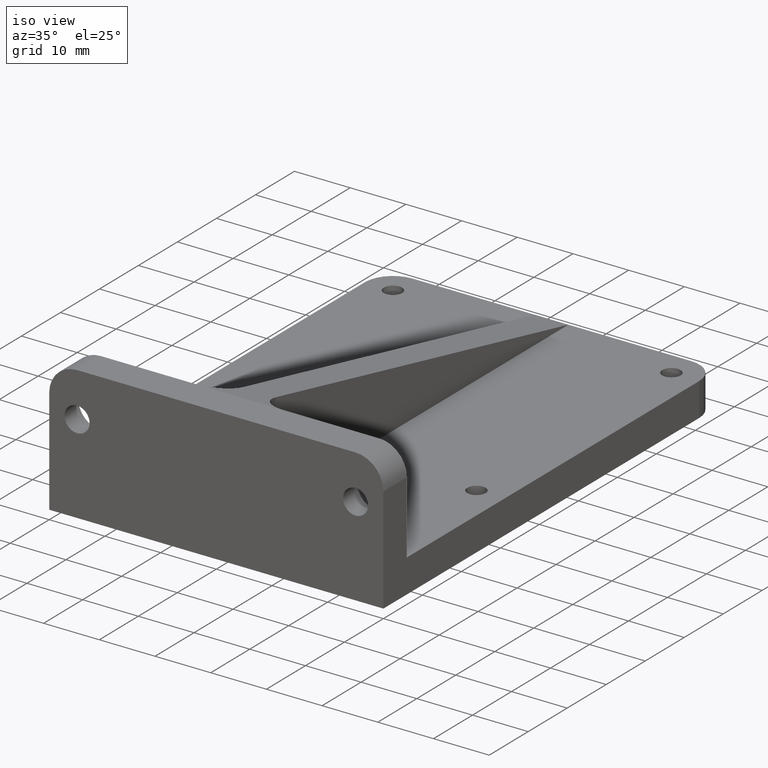
[diagram: clean part render]
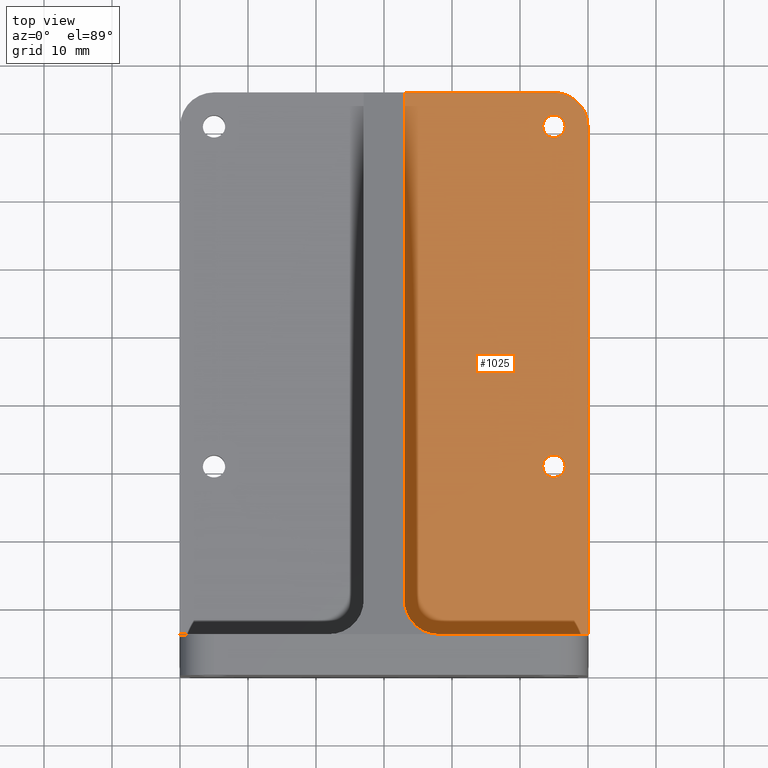
[diagram: tour spotlight — one face highlighted and labeled with its STEP entity id]
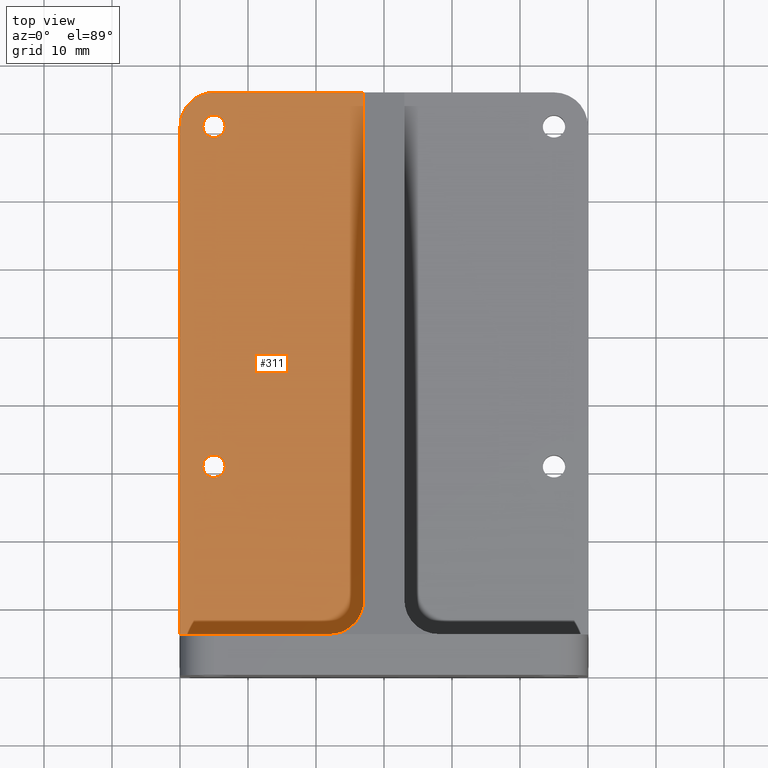
[diagram: tour spotlight — one face highlighted and labeled with its STEP entity id]
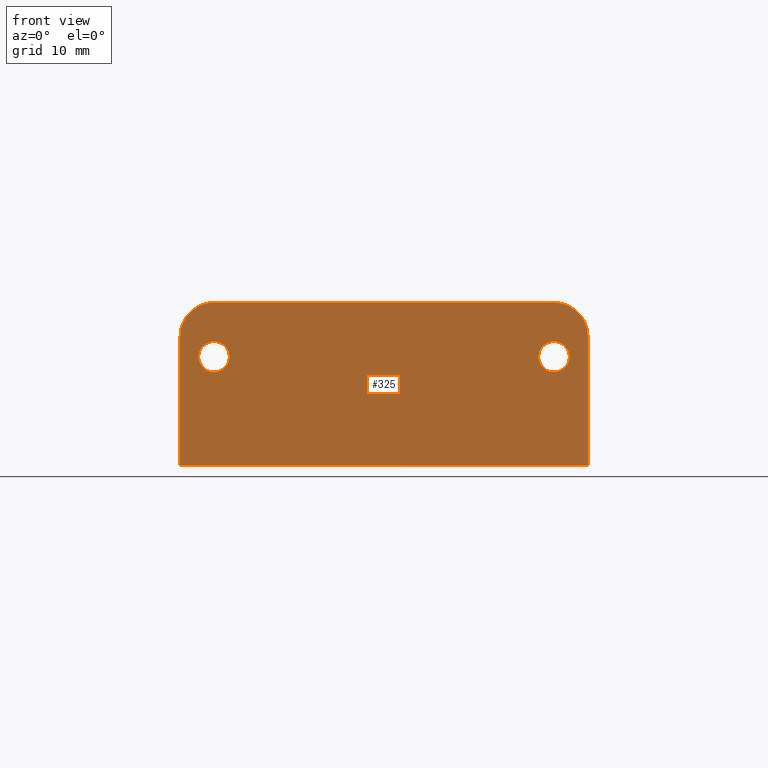
[diagram: tour spotlight — one face highlighted and labeled with its STEP entity id]
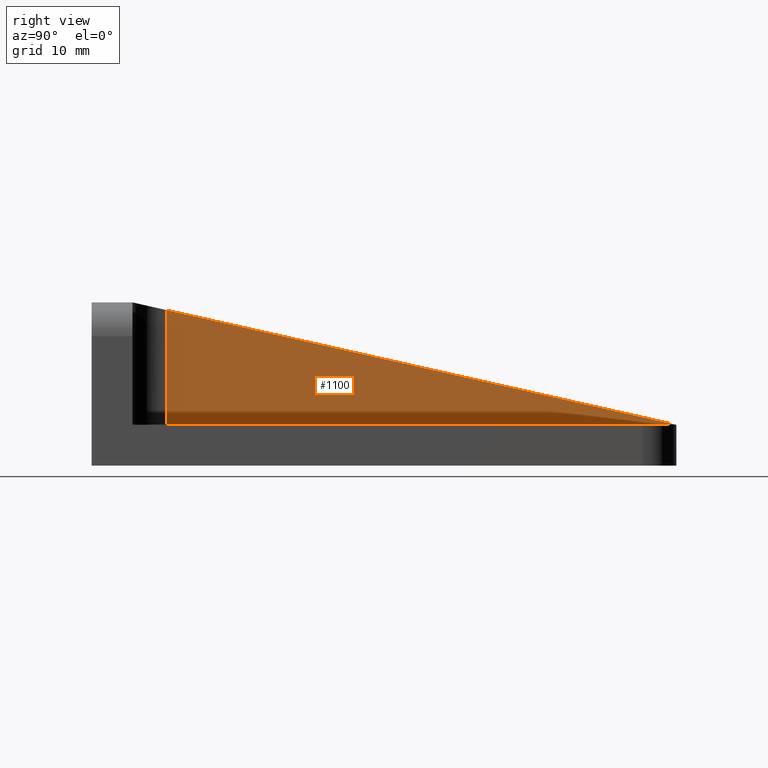
[diagram: tour spotlight — one face highlighted and labeled with its STEP entity id]
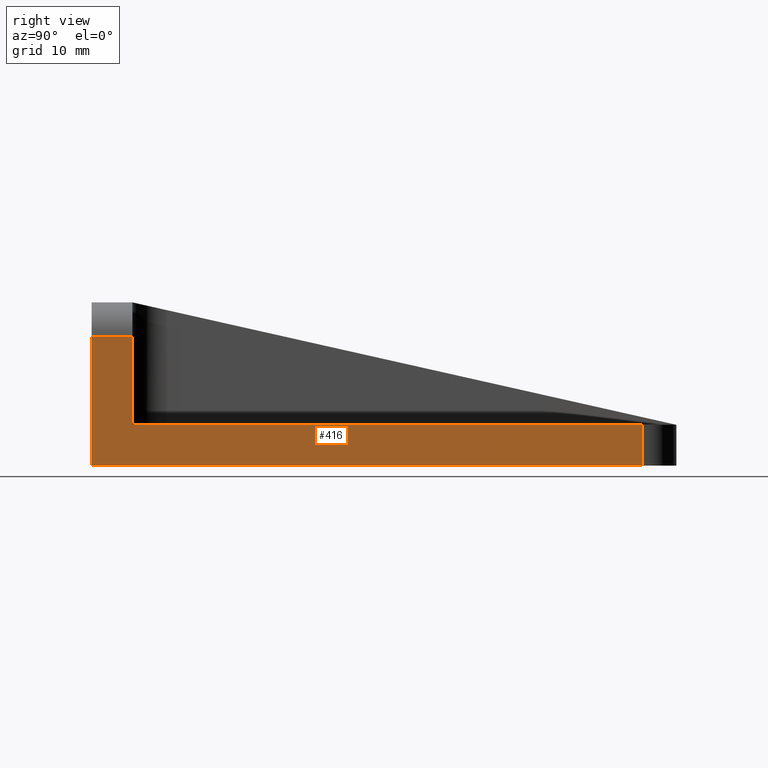
[diagram: tour spotlight — one face highlighted and labeled with its STEP entity id]
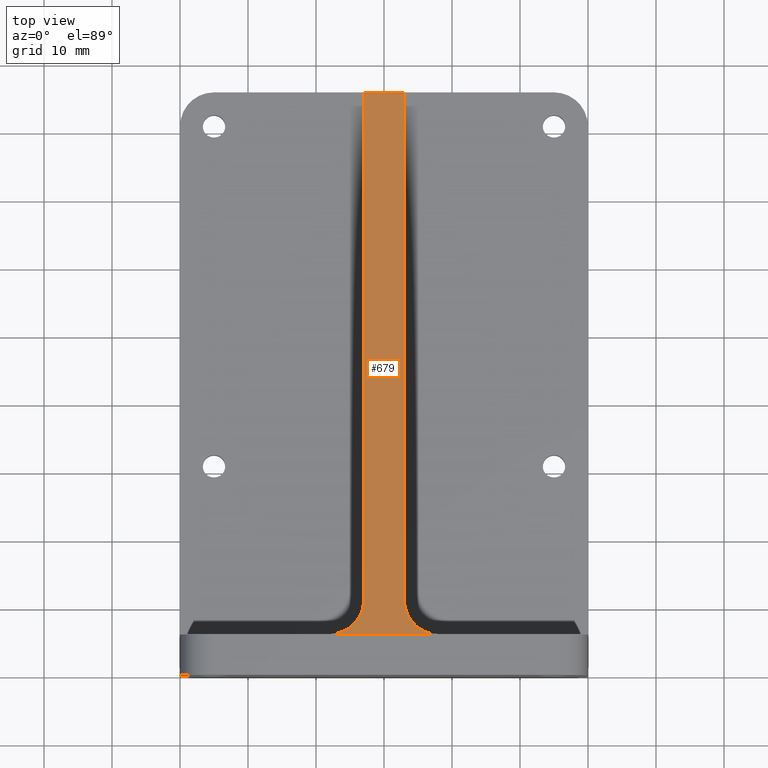
[diagram: tour spotlight — one face highlighted and labeled with its STEP entity id]
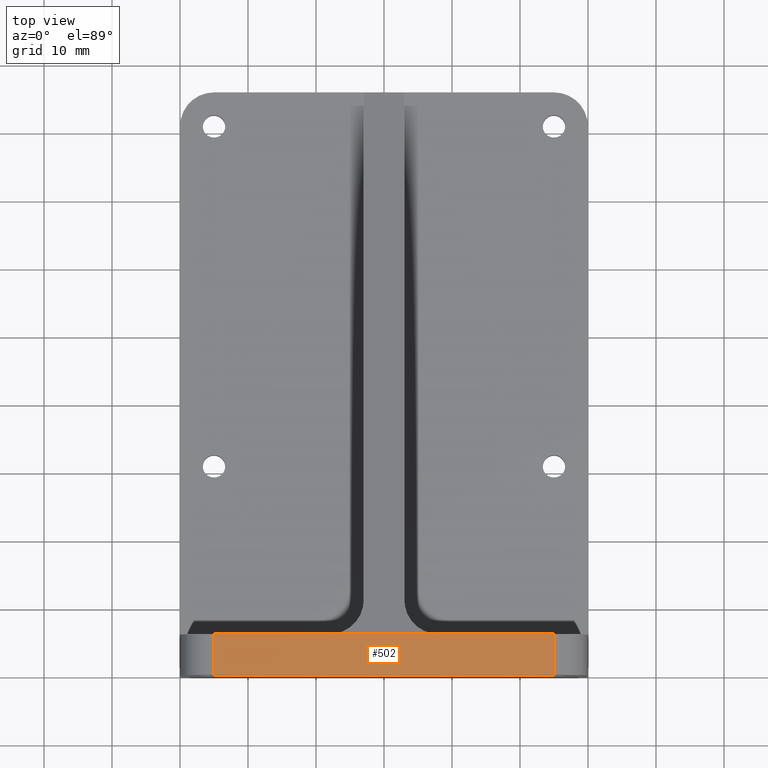
[diagram: tour spotlight — one face highlighted and labeled with its STEP entity id]
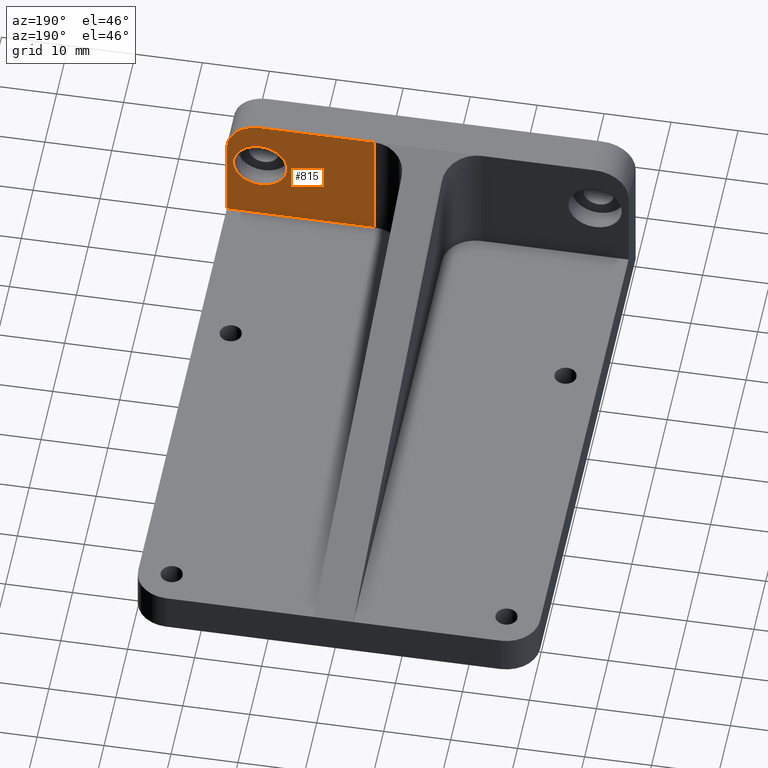
[diagram: tour spotlight — one face highlighted and labeled with its STEP entity id]
A machine part: a face-by-face anatomy tour. The part has 37 B-rep faces; the first image is the clean iso view, then the 8 largest visible faces are spotlighted one at a time (largest first), each with its STEP entity span.

Face 1 — top view, entity #1025. In plain terms, the highlighted planar face has unit normal (0, 0, 1).
Definition (entity closure, byte-faithful):
#5 = VECTOR ( 'NONE', #244, 1000.000000000000000 ) ;
#24 = AXIS2_PLACEMENT_3D ( 'NONE', #197, #954, #499 ) ;
#40 = VERTEX_POINT ( 'NONE', #651 ) ;
#42 = CARTESIAN_POINT ( 'NONE',  ( 30.00000000000000000, 86.00000000000000000, 6.000000000000000000 ) ) ;
#68 = DIRECTION ( 'NONE',  ( -0.0000000000000000000, -0.0000000000000000000, 1.000000000000000000 ) ) ;
#76 = CARTESIAN_POINT ( 'NONE',  ( 30.00000000000000000, 5.999999999999996447, 6.000000000000000000 ) ) ;
#79 = VERTEX_POINT ( 'NONE', #688 ) ;
#83 = ORIENTED_EDGE ( 'NONE', *, *, #391, .F. ) ;
#92 = AXIS2_PLACEMENT_3D ( 'NONE', #430, #797, #632 ) ;
#121 = EDGE_CURVE ( 'NONE', #864, #560, #1045, .T. ) ;
#133 = ORIENTED_EDGE ( 'NONE', *, *, #246, .F. ) ;
#146 = PLANE ( 'NONE',  #817 ) ;
#149 = EDGE_CURVE ( 'NONE', #762, #560, #807, .T. ) ;
#156 = DIRECTION ( 'NONE',  ( 1.000000000000000000, 0.0000000000000000000, 0.0000000000000000000 ) ) ;
#169 = EDGE_CURVE ( 'NONE', #900, #40, #788, .T. ) ;
#174 = ORIENTED_EDGE ( 'NONE', *, *, #149, .T. ) ;
#188 = CARTESIAN_POINT ( 'NONE',  ( 8.000000000000007105, 5.999999999999997335, 6.000000000000005329 ) ) ;
#190 = EDGE_CURVE ( 'NONE', #274, #79, #314, .T. ) ;
#197 = CARTESIAN_POINT ( 'NONE',  ( 8.000000000000007105, 10.99999999999999645, 6.000000000000005329 ) ) ;
#214 = AXIS2_PLACEMENT_3D ( 'NONE', #351, #68, #693 ) ;
#222 = EDGE_LOOP ( 'NONE', ( #405, #655 ) ) ;
#244 = DIRECTION ( 'NONE',  ( -0.0000000000000000000, -1.000000000000000000, 0.0000000000000000000 ) ) ;
#246 = EDGE_CURVE ( 'NONE', #40, #900, #756, .T. ) ;
#263 = ORIENTED_EDGE ( 'NONE', *, *, #121, .F. ) ;
#273 = EDGE_LOOP ( 'NONE', ( #83, #392, #554, #998, #174, #263 ) ) ;
#274 = VERTEX_POINT ( 'NONE', #451 ) ;
#306 = VERTEX_POINT ( 'NONE', #1078 ) ;
#314 = CIRCLE ( 'NONE', #1003, 5.000000000000000888 ) ;
#323 = VERTEX_POINT ( 'NONE', #458 ) ;
#351 = CARTESIAN_POINT ( 'NONE',  ( 25.00000000000001421, 30.99999999999998579, 6.000000000000000000 ) ) ;
#378 = EDGE_CURVE ( 'NONE', #1179, #306, #1174, .T. ) ;
#391 = EDGE_CURVE ( 'NONE', #274, #864, #1118, .T. ) ;
#392 = ORIENTED_EDGE ( 'NONE', *, *, #190, .T. ) ;
#393 = CARTESIAN_POINT ( 'NONE',  ( 25.00000000000001421, 30.99999999999998579, 6.000000000000000000 ) ) ;
#405 = ORIENTED_EDGE ( 'NONE', *, *, #378, .F. ) ;
#430 = CARTESIAN_POINT ( 'NONE',  ( 25.00000000000000000, 80.99999999999998579, 6.000000000000000000 ) ) ;
#440 = DIRECTION ( 'NONE',  ( -1.000000000000000000, -0.0000000000000000000, -0.0000000000000000000 ) ) ;
#451 = CARTESIAN_POINT ( 'NONE',  ( 30.00000000000000000, 80.99999999999998579, 6.000000000000005329 ) ) ;
#456 = EDGE_CURVE ( 'NONE', #306, #1179, #1172, .T. ) ;
#458 = CARTESIAN_POINT ( 'NONE',  ( 3.000000000000007994, 86.00000000000000000, 6.000000000000005329 ) ) ;
#468 = FACE_BOUND ( 'NONE', #649, .T. ) ;
#474 = EDGE_CURVE ( 'NONE', #762, #323, #1076, .T. ) ;
#499 = DIRECTION ( 'NONE',  ( 1.000000000000000000, 0.0000000000000000000, 0.0000000000000000000 ) ) ;
#503 = EDGE_CURVE ( 'NONE', #79, #323, #896, .T. ) ;
#524 = VECTOR ( 'NONE', #440, 1000.000000000000000 ) ;
#542 = DIRECTION ( 'NONE',  ( -1.084202172485504434E-17, 1.000000000000000000, 0.0000000000000000000 ) ) ;
#554 = ORIENTED_EDGE ( 'NONE', *, *, #503, .T. ) ;
#560 = VERTEX_POINT ( 'NONE', #188 ) ;
#599 = CARTESIAN_POINT ( 'NONE',  ( 24.99999999999999645, 80.99999999999998579, 6.000000000000000000 ) ) ;
#627 = FACE_OUTER_BOUND ( 'NONE', #273, .T. ) ;
#632 = DIRECTION ( 'NONE',  ( 1.000000000000000000, 0.0000000000000000000, 0.0000000000000000000 ) ) ;
#639 = CARTESIAN_POINT ( 'NONE',  ( 25.00000000000000000, 80.99999999999998579, 6.000000000000000000 ) ) ;
#647 = DIRECTION ( 'NONE',  ( 1.000000000000000000, 0.0000000000000000000, -0.0000000000000000000 ) ) ;
#649 = EDGE_LOOP ( 'NONE', ( #894, #133 ) ) ;
#651 = CARTESIAN_POINT ( 'NONE',  ( 23.35000000000001563, 30.99999999999998579, 6.000000000000000000 ) ) ;
#655 = ORIENTED_EDGE ( 'NONE', *, *, #456, .F. ) ;
#688 = CARTESIAN_POINT ( 'NONE',  ( 24.99999999999999645, 86.00000000000000000, 6.000000000000000000 ) ) ;
#690 = CARTESIAN_POINT ( 'NONE',  ( 26.65000000000001279, 30.99999999999998579, 6.000000000000000000 ) ) ;
#693 = DIRECTION ( 'NONE',  ( 1.000000000000000000, 0.0000000000000000000, 0.0000000000000000000 ) ) ;
#703 = FACE_BOUND ( 'NONE', #222, .T. ) ;
#756 = CIRCLE ( 'NONE', #214, 1.649999999999998579 ) ;
#762 = VERTEX_POINT ( 'NONE', #1057 ) ;
#777 = DIRECTION ( 'NONE',  ( 1.000000000000000000, 0.0000000000000000000, 0.0000000000000000000 ) ) ;
#788 = CIRCLE ( 'NONE', #964, 1.649999999999998579 ) ;
#797 = DIRECTION ( 'NONE',  ( -0.0000000000000000000, -0.0000000000000000000, 1.000000000000000000 ) ) ;
#807 = CIRCLE ( 'NONE', #24, 5.000000000000000888 ) ;
#817 = AXIS2_PLACEMENT_3D ( 'NONE', #990, #1004, #647 ) ;
#849 = AXIS2_PLACEMENT_3D ( 'NONE', #639, #1006, #156 ) ;
#864 = VERTEX_POINT ( 'NONE', #76 ) ;
#894 = ORIENTED_EDGE ( 'NONE', *, *, #169, .F. ) ;
#896 = LINE ( 'NONE', #42, #524 ) ;
#900 = VERTEX_POINT ( 'NONE', #690 ) ;
#922 = CARTESIAN_POINT ( 'NONE',  ( 26.64999999999999858, 80.99999999999998579, 6.000000000000000000 ) ) ;
#939 = DIRECTION ( 'NONE',  ( -1.000000000000000000, 3.212450881438532980E-17, 0.0000000000000000000 ) ) ;
#943 = VECTOR ( 'NONE', #542, 1000.000000000000000 ) ;
#954 = DIRECTION ( 'NONE',  ( 0.0000000000000000000, 0.0000000000000000000, 1.000000000000000000 ) ) ;
#958 = DIRECTION ( 'NONE',  ( 0.0000000000000000000, 0.0000000000000000000, 1.000000000000000000 ) ) ;
#964 = AXIS2_PLACEMENT_3D ( 'NONE', #393, #1135, #1240 ) ;
#982 = CARTESIAN_POINT ( 'NONE',  ( 3.000000000000008882, 5.999999999999997335, 6.000000000000005329 ) ) ;
#990 = CARTESIAN_POINT ( 'NONE',  ( 30.00000000000000000, 0.0000000000000000000, 6.000000000000000000 ) ) ;
#998 = ORIENTED_EDGE ( 'NONE', *, *, #474, .F. ) ;
#1003 = AXIS2_PLACEMENT_3D ( 'NONE', #599, #958, #777 ) ;
#1004 = DIRECTION ( 'NONE',  ( 0.0000000000000000000, 0.0000000000000000000, 1.000000000000000000 ) ) ;
#1006 = DIRECTION ( 'NONE',  ( -0.0000000000000000000, -0.0000000000000000000, 1.000000000000000000 ) ) ;
#1025 = ADVANCED_FACE ( 'NONE', ( #468, #703, #627 ), #146, .T. ) ;
#1045 = LINE ( 'NONE', #1052, #1152 ) ;
#1052 = CARTESIAN_POINT ( 'NONE',  ( 30.00000000000000000, 5.999999999999996447, 6.000000000000005329 ) ) ;
#1057 = CARTESIAN_POINT ( 'NONE',  ( 3.000000000000008882, 10.99999999999999645, 6.000000000000005329 ) ) ;
#1076 = LINE ( 'NONE', #982, #943 ) ;
#1078 = CARTESIAN_POINT ( 'NONE',  ( 23.35000000000000142, 80.99999999999998579, 6.000000000000000000 ) ) ;
#1084 = CARTESIAN_POINT ( 'NONE',  ( 30.00000000000000000, 5.999999999999996447, 6.000000000000005329 ) ) ;
#1118 = LINE ( 'NONE', #1084, #5 ) ;
#1135 = DIRECTION ( 'NONE',  ( -0.0000000000000000000, -0.0000000000000000000, 1.000000000000000000 ) ) ;
#1152 = VECTOR ( 'NONE', #939, 1000.000000000000000 ) ;
#1172 = CIRCLE ( 'NONE', #92, 1.649999999999998579 ) ;
#1174 = CIRCLE ( 'NONE', #849, 1.649999999999998579 ) ;
#1179 = VERTEX_POINT ( 'NONE', #922 ) ;
#1240 = DIRECTION ( 'NONE',  ( 1.000000000000000000, 0.0000000000000000000, 0.0000000000000000000 ) ) ;

Face 2 — top view, entity #311. In plain terms, the highlighted planar face has unit normal (0, 0, 1).
Definition (entity closure, byte-faithful):
#6 = VERTEX_POINT ( 'NONE', #70 ) ;
#12 = DIRECTION ( 'NONE',  ( -0.0000000000000000000, -0.0000000000000000000, 1.000000000000000000 ) ) ;
#18 = EDGE_CURVE ( 'NONE', #6, #89, #355, .T. ) ;
#20 = ORIENTED_EDGE ( 'NONE', *, *, #196, .F. ) ;
#49 = EDGE_CURVE ( 'NONE', #795, #671, #401, .T. ) ;
#50 = AXIS2_PLACEMENT_3D ( 'NONE', #1158, #55, #552 ) ;
#55 = DIRECTION ( 'NONE',  ( -0.0000000000000000000, -0.0000000000000000000, 1.000000000000000000 ) ) ;
#67 = DIRECTION ( 'NONE',  ( 3.035766082959412415E-16, -1.000000000000000000, 0.0000000000000000000 ) ) ;
#70 = CARTESIAN_POINT ( 'NONE',  ( -30.00000000000000000, 5.999999999999996447, 6.000000000000005329 ) ) ;
#81 = LINE ( 'NONE', #1229, #356 ) ;
#89 = VERTEX_POINT ( 'NONE', #684 ) ;
#136 = EDGE_CURVE ( 'NONE', #980, #1121, #508, .T. ) ;
#151 = AXIS2_PLACEMENT_3D ( 'NONE', #834, #1216, #363 ) ;
#167 = ORIENTED_EDGE ( 'NONE', *, *, #49, .F. ) ;
#196 = EDGE_CURVE ( 'NONE', #1222, #643, #979, .T. ) ;
#201 = AXIS2_PLACEMENT_3D ( 'NONE', #205, #870, #414 ) ;
#205 = CARTESIAN_POINT ( 'NONE',  ( -7.999999999999991118, 10.99999999999999645, 6.000000000000005329 ) ) ;
#212 = DIRECTION ( 'NONE',  ( 1.000000000000000000, 0.0000000000000000000, -0.0000000000000000000 ) ) ;
#268 = EDGE_LOOP ( 'NONE', ( #1136, #611, #282, #796, #893, #767 ) ) ;
#277 = VECTOR ( 'NONE', #67, 1000.000000000000000 ) ;
#282 = ORIENTED_EDGE ( 'NONE', *, *, #18, .F. ) ;
#311 = ADVANCED_FACE ( 'NONE', ( #558, #992, #1194 ), #906, .T. ) ;
#339 = DIRECTION ( 'NONE',  ( 0.0000000000000000000, 0.0000000000000000000, 1.000000000000000000 ) ) ;
#345 = CARTESIAN_POINT ( 'NONE',  ( -26.64999999999999858, 80.99999999999998579, 6.000000000000000000 ) ) ;
#346 = CARTESIAN_POINT ( 'NONE',  ( 30.00000000000000000, 0.0000000000000000000, 6.000000000000000000 ) ) ;
#355 = LINE ( 'NONE', #909, #830 ) ;
#356 = VECTOR ( 'NONE', #373, 1000.000000000000000 ) ;
#363 = DIRECTION ( 'NONE',  ( 1.000000000000000000, 0.0000000000000000000, 0.0000000000000000000 ) ) ;
#371 = CARTESIAN_POINT ( 'NONE',  ( -23.35000000000001563, 30.99999999999998579, 6.000000000000000000 ) ) ;
#373 = DIRECTION ( 'NONE',  ( -1.000000000000000000, 0.0000000000000000000, 0.0000000000000000000 ) ) ;
#401 = CIRCLE ( 'NONE', #151, 1.649999999999998579 ) ;
#413 = EDGE_CURVE ( 'NONE', #643, #1222, #757, .T. ) ;
#414 = DIRECTION ( 'NONE',  ( 1.000000000000000000, 0.0000000000000000000, 0.0000000000000000000 ) ) ;
#420 = ORIENTED_EDGE ( 'NONE', *, *, #751, .F. ) ;
#421 = DIRECTION ( 'NONE',  ( 1.000000000000000000, 0.0000000000000000000, 0.0000000000000000000 ) ) ;
#435 = DIRECTION ( 'NONE',  ( -0.0000000000000000000, -0.0000000000000000000, 1.000000000000000000 ) ) ;
#445 = EDGE_CURVE ( 'NONE', #832, #89, #1050, .T. ) ;
#487 = AXIS2_PLACEMENT_3D ( 'NONE', #638, #435, #421 ) ;
#508 = CIRCLE ( 'NONE', #201, 5.000000000000000000 ) ;
#552 = DIRECTION ( 'NONE',  ( 1.000000000000000000, 0.0000000000000000000, 0.0000000000000000000 ) ) ;
#558 = FACE_BOUND ( 'NONE', #918, .T. ) ;
#571 = CIRCLE ( 'NONE', #1153, 1.649999999999998579 ) ;
#574 = ORIENTED_EDGE ( 'NONE', *, *, #413, .F. ) ;
#589 = AXIS2_PLACEMENT_3D ( 'NONE', #346, #339, #726 ) ;
#596 = CARTESIAN_POINT ( 'NONE',  ( -24.99999999999999289, 86.00000000000000000, 6.000000000000005329 ) ) ;
#611 = ORIENTED_EDGE ( 'NONE', *, *, #445, .T. ) ;
#614 = DIRECTION ( 'NONE',  ( 1.000000000000000000, 0.0000000000000000000, 0.0000000000000000000 ) ) ;
#618 = DIRECTION ( 'NONE',  ( 0.0000000000000000000, 0.0000000000000000000, 1.000000000000000000 ) ) ;
#638 = CARTESIAN_POINT ( 'NONE',  ( -25.00000000000000000, 80.99999999999998579, 6.000000000000000000 ) ) ;
#643 = VERTEX_POINT ( 'NONE', #828 ) ;
#652 = CARTESIAN_POINT ( 'NONE',  ( -2.999999999999988898, 5.999999999999996447, 6.000000000000005329 ) ) ;
#671 = VERTEX_POINT ( 'NONE', #371 ) ;
#672 = EDGE_CURVE ( 'NONE', #1127, #1121, #1227, .T. ) ;
#681 = CARTESIAN_POINT ( 'NONE',  ( -3.000000000000012879, 86.00000000000000000, 6.000000000000005329 ) ) ;
#684 = CARTESIAN_POINT ( 'NONE',  ( -30.00000000000000000, 80.99999999999998579, 6.000000000000005329 ) ) ;
#694 = DIRECTION ( 'NONE',  ( 1.000000000000000000, 0.0000000000000000000, 0.0000000000000000000 ) ) ;
#709 = CARTESIAN_POINT ( 'NONE',  ( -24.99999999999999289, 80.99999999999998579, 6.000000000000000000 ) ) ;
#714 = CARTESIAN_POINT ( 'NONE',  ( -7.999999999999992895, 5.999999999999996447, 6.000000000000005329 ) ) ;
#726 = DIRECTION ( 'NONE',  ( 1.000000000000000000, 0.0000000000000000000, -0.0000000000000000000 ) ) ;
#734 = AXIS2_PLACEMENT_3D ( 'NONE', #709, #618, #614 ) ;
#751 = EDGE_CURVE ( 'NONE', #671, #795, #571, .T. ) ;
#757 = CIRCLE ( 'NONE', #487, 1.649999999999998579 ) ;
#761 = EDGE_CURVE ( 'NONE', #832, #1127, #1066, .T. ) ;
#767 = ORIENTED_EDGE ( 'NONE', *, *, #672, .F. ) ;
#795 = VERTEX_POINT ( 'NONE', #1144 ) ;
#796 = ORIENTED_EDGE ( 'NONE', *, *, #890, .F. ) ;
#828 = CARTESIAN_POINT ( 'NONE',  ( -23.35000000000000142, 80.99999999999998579, 6.000000000000000000 ) ) ;
#830 = VECTOR ( 'NONE', #838, 1000.000000000000000 ) ;
#832 = VERTEX_POINT ( 'NONE', #596 ) ;
#834 = CARTESIAN_POINT ( 'NONE',  ( -25.00000000000001421, 30.99999999999998579, 6.000000000000000000 ) ) ;
#838 = DIRECTION ( 'NONE',  ( 0.0000000000000000000, 1.000000000000000000, -0.0000000000000000000 ) ) ;
#868 = CARTESIAN_POINT ( 'NONE',  ( -25.00000000000001421, 30.99999999999998579, 6.000000000000000000 ) ) ;
#870 = DIRECTION ( 'NONE',  ( 0.0000000000000000000, 0.0000000000000000000, 1.000000000000000000 ) ) ;
#884 = VECTOR ( 'NONE', #212, 1000.000000000000000 ) ;
#890 = EDGE_CURVE ( 'NONE', #980, #6, #81, .T. ) ;
#893 = ORIENTED_EDGE ( 'NONE', *, *, #136, .T. ) ;
#906 = PLANE ( 'NONE',  #589 ) ;
#909 = CARTESIAN_POINT ( 'NONE',  ( -30.00000000000000000, 5.999999999999996447, 6.000000000000005329 ) ) ;
#918 = EDGE_LOOP ( 'NONE', ( #574, #20 ) ) ;
#938 = EDGE_LOOP ( 'NONE', ( #420, #167 ) ) ;
#951 = CARTESIAN_POINT ( 'NONE',  ( -30.00000000000000000, 86.00000000000000000, 6.000000000000005329 ) ) ;
#979 = CIRCLE ( 'NONE', #50, 1.649999999999998579 ) ;
#980 = VERTEX_POINT ( 'NONE', #714 ) ;
#992 = FACE_BOUND ( 'NONE', #938, .T. ) ;
#1050 = CIRCLE ( 'NONE', #734, 5.000000000000000888 ) ;
#1066 = LINE ( 'NONE', #951, #884 ) ;
#1121 = VERTEX_POINT ( 'NONE', #1145 ) ;
#1127 = VERTEX_POINT ( 'NONE', #681 ) ;
#1136 = ORIENTED_EDGE ( 'NONE', *, *, #761, .F. ) ;
#1144 = CARTESIAN_POINT ( 'NONE',  ( -26.65000000000001279, 30.99999999999998579, 6.000000000000000000 ) ) ;
#1145 = CARTESIAN_POINT ( 'NONE',  ( -2.999999999999990674, 10.99999999999999822, 6.000000000000005329 ) ) ;
#1153 = AXIS2_PLACEMENT_3D ( 'NONE', #868, #12, #694 ) ;
#1158 = CARTESIAN_POINT ( 'NONE',  ( -25.00000000000000000, 80.99999999999998579, 6.000000000000000000 ) ) ;
#1194 = FACE_OUTER_BOUND ( 'NONE', #268, .T. ) ;
#1216 = DIRECTION ( 'NONE',  ( -0.0000000000000000000, -0.0000000000000000000, 1.000000000000000000 ) ) ;
#1222 = VERTEX_POINT ( 'NONE', #345 ) ;
#1227 = LINE ( 'NONE', #652, #277 ) ;
#1229 = CARTESIAN_POINT ( 'NONE',  ( -30.00000000000000000, 5.999999999999996447, 6.000000000000005329 ) ) ;

Face 3 — front view, entity #325. In plain terms, the highlighted planar face has unit normal (-0, 1, 0).
Definition (entity closure, byte-faithful):
#1 = CARTESIAN_POINT ( 'NONE',  ( 25.00000000000000355, -1.734723475976807094E-15, 15.99999999999999289 ) ) ;
#11 = CIRCLE ( 'NONE', #531, 5.000000000000000888 ) ;
#25 = AXIS2_PLACEMENT_3D ( 'NONE', #825, #732, #39 ) ;
#39 = DIRECTION ( 'NONE',  ( 0.0000000000000000000, -1.224646799147353207E-16, 1.000000000000000000 ) ) ;
#45 = CARTESIAN_POINT ( 'NONE',  ( 30.00000000000000000, -2.326828918379970970E-15, 19.00000000000000000 ) ) ;
#51 = VERTEX_POINT ( 'NONE', #569 ) ;
#62 = DIRECTION ( 'NONE',  ( 0.0000000000000000000, -1.224646799147352714E-16, 1.000000000000000000 ) ) ;
#94 = VECTOR ( 'NONE', #358, 1000.000000000000000 ) ;
#108 = DIRECTION ( 'NONE',  ( -0.0000000000000000000, 1.224646799147353207E-16, -1.000000000000000000 ) ) ;
#123 = ORIENTED_EDGE ( 'NONE', *, *, #464, .T. ) ;
#132 = PLANE ( 'NONE',  #25 ) ;
#145 = CARTESIAN_POINT ( 'NONE',  ( -30.00000000000000000, -2.326828918379970970E-15, 19.00000000000000000 ) ) ;
#148 = DIRECTION ( 'NONE',  ( -0.0000000000000000000, 1.224646799147353207E-16, -1.000000000000000000 ) ) ;
#165 = ORIENTED_EDGE ( 'NONE', *, *, #635, .F. ) ;
#168 = EDGE_LOOP ( 'NONE', ( #1209, #370, #903, #366, #758, #165 ) ) ;
#183 = EDGE_LOOP ( 'NONE', ( #691, #798 ) ) ;
#215 = EDGE_CURVE ( 'NONE', #226, #428, #379, .T. ) ;
#220 = CARTESIAN_POINT ( 'NONE',  ( -30.00000000000000000, 0.0000000000000000000, 0.0000000000000000000 ) ) ;
#226 = VERTEX_POINT ( 'NONE', #45 ) ;
#230 = VECTOR ( 'NONE', #148, 1000.000000000000000 ) ;
#252 = CIRCLE ( 'NONE', #547, 2.249999999999998668 ) ;
#257 = DIRECTION ( 'NONE',  ( 0.0000000000000000000, -1.000000000000000000, -1.224646799147353207E-16 ) ) ;
#271 = CARTESIAN_POINT ( 'NONE',  ( -24.99999999999999289, -2.939152317953647894E-15, 24.00000000000000000 ) ) ;
#278 = EDGE_CURVE ( 'NONE', #226, #326, #648, .T. ) ;
#288 = CARTESIAN_POINT ( 'NONE',  ( -24.99999999999999645, -2.010269005784961178E-15, 18.25000000000000000 ) ) ;
#290 = CARTESIAN_POINT ( 'NONE',  ( -24.99999999999999289, -2.326828918379970970E-15, 19.00000000000000000 ) ) ;
#300 = LINE ( 'NONE', #220, #776 ) ;
#307 = CARTESIAN_POINT ( 'NONE',  ( 30.00000000000000000, 0.0000000000000000000, 0.0000000000000000000 ) ) ;
#324 = DIRECTION ( 'NONE',  ( -0.0000000000000000000, 1.000000000000000000, 1.224646799147353207E-16 ) ) ;
#325 = ADVANCED_FACE ( 'NONE', ( #532, #917, #441 ), #132, .F. ) ;
#326 = VERTEX_POINT ( 'NONE', #307 ) ;
#328 = EDGE_LOOP ( 'NONE', ( #123, #1095 ) ) ;
#344 = CARTESIAN_POINT ( 'NONE',  ( 24.99999999999999645, -2.939152317953647894E-15, 24.00000000000000000 ) ) ;
#358 = DIRECTION ( 'NONE',  ( -1.000000000000000000, -0.0000000000000000000, -0.0000000000000000000 ) ) ;
#366 = ORIENTED_EDGE ( 'NONE', *, *, #1188, .T. ) ;
#370 = ORIENTED_EDGE ( 'NONE', *, *, #215, .T. ) ;
#379 = CIRCLE ( 'NONE', #586, 5.000000000000000888 ) ;
#381 = DIRECTION ( 'NONE',  ( -0.0000000000000000000, 1.000000000000000000, 1.224646799147353207E-16 ) ) ;
#395 = DIRECTION ( 'NONE',  ( -0.0000000000000000000, 1.000000000000000000, 1.224646799147353207E-16 ) ) ;
#426 = VERTEX_POINT ( 'NONE', #145 ) ;
#428 = VERTEX_POINT ( 'NONE', #344 ) ;
#441 = FACE_OUTER_BOUND ( 'NONE', #168, .T. ) ;
#457 = DIRECTION ( 'NONE',  ( 0.0000000000000000000, -1.224646799147352961E-16, 1.000000000000000000 ) ) ;
#464 = EDGE_CURVE ( 'NONE', #804, #624, #252, .T. ) ;
#472 = DIRECTION ( 'NONE',  ( -0.0000000000000000000, 1.000000000000000000, 1.224646799147353207E-16 ) ) ;
#481 = CARTESIAN_POINT ( 'NONE',  ( -24.99999999999999645, -1.734723475976807094E-15, 16.00000000000000000 ) ) ;
#507 = CARTESIAN_POINT ( 'NONE',  ( 25.00000000000000355, -1.734723475976807094E-15, 15.99999999999999289 ) ) ;
#509 = AXIS2_PLACEMENT_3D ( 'NONE', #481, #472, #457 ) ;
#531 = AXIS2_PLACEMENT_3D ( 'NONE', #290, #687, #1164 ) ;
#532 = FACE_BOUND ( 'NONE', #328, .T. ) ;
#547 = AXIS2_PLACEMENT_3D ( 'NONE', #725, #324, #706 ) ;
#549 = CIRCLE ( 'NONE', #907, 2.249999999999998668 ) ;
#569 = CARTESIAN_POINT ( 'NONE',  ( 25.00000000000000355, -2.010269005784961178E-15, 18.24999999999999289 ) ) ;
#586 = AXIS2_PLACEMENT_3D ( 'NONE', #984, #257, #62 ) ;
#624 = VERTEX_POINT ( 'NONE', #1219 ) ;
#633 = EDGE_CURVE ( 'NONE', #624, #804, #1029, .T. ) ;
#635 = EDGE_CURVE ( 'NONE', #326, #811, #823, .T. ) ;
#648 = LINE ( 'NONE', #997, #230 ) ;
#665 = AXIS2_PLACEMENT_3D ( 'NONE', #507, #381, #1048 ) ;
#674 = CARTESIAN_POINT ( 'NONE',  ( -30.00000000000000000, 0.0000000000000000000, 0.0000000000000000000 ) ) ;
#680 = DIRECTION ( 'NONE',  ( 0.0000000000000000000, -1.224646799147352961E-16, 1.000000000000000000 ) ) ;
#687 = DIRECTION ( 'NONE',  ( 0.0000000000000000000, -1.000000000000000000, -1.224646799147353207E-16 ) ) ;
#691 = ORIENTED_EDGE ( 'NONE', *, *, #822, .T. ) ;
#705 = VERTEX_POINT ( 'NONE', #271 ) ;
#706 = DIRECTION ( 'NONE',  ( 0.0000000000000000000, -1.224646799147352961E-16, 1.000000000000000000 ) ) ;
#725 = CARTESIAN_POINT ( 'NONE',  ( -24.99999999999999645, -1.734723475976807094E-15, 16.00000000000000000 ) ) ;
#729 = CARTESIAN_POINT ( 'NONE',  ( 30.00000000000000000, 0.0000000000000000000, 0.0000000000000000000 ) ) ;
#732 = DIRECTION ( 'NONE',  ( -0.0000000000000000000, 1.000000000000000000, 1.224646799147353207E-16 ) ) ;
#758 = ORIENTED_EDGE ( 'NONE', *, *, #948, .T. ) ;
#776 = VECTOR ( 'NONE', #108, 1000.000000000000000 ) ;
#798 = ORIENTED_EDGE ( 'NONE', *, *, #1157, .T. ) ;
#804 = VERTEX_POINT ( 'NONE', #288 ) ;
#811 = VERTEX_POINT ( 'NONE', #674 ) ;
#822 = EDGE_CURVE ( 'NONE', #51, #1071, #549, .T. ) ;
#823 = LINE ( 'NONE', #729, #1191 ) ;
#825 = CARTESIAN_POINT ( 'NONE',  ( 30.00000000000000000, 0.0000000000000000000, 0.0000000000000000000 ) ) ;
#891 = LINE ( 'NONE', #1013, #94 ) ;
#903 = ORIENTED_EDGE ( 'NONE', *, *, #930, .T. ) ;
#907 = AXIS2_PLACEMENT_3D ( 'NONE', #1, #395, #680 ) ;
#917 = FACE_BOUND ( 'NONE', #183, .T. ) ;
#930 = EDGE_CURVE ( 'NONE', #428, #705, #891, .T. ) ;
#948 = EDGE_CURVE ( 'NONE', #426, #811, #300, .T. ) ;
#984 = CARTESIAN_POINT ( 'NONE',  ( 24.99999999999999645, -2.326828918379970970E-15, 19.00000000000000000 ) ) ;
#997 = CARTESIAN_POINT ( 'NONE',  ( 30.00000000000000000, 0.0000000000000000000, 0.0000000000000000000 ) ) ;
#1013 = CARTESIAN_POINT ( 'NONE',  ( 30.00000000000000000, -2.939152317953647894E-15, 24.00000000000000000 ) ) ;
#1029 = CIRCLE ( 'NONE', #509, 2.249999999999998668 ) ;
#1032 = CIRCLE ( 'NONE', #665, 2.249999999999998668 ) ;
#1048 = DIRECTION ( 'NONE',  ( 0.0000000000000000000, -1.224646799147352961E-16, 1.000000000000000000 ) ) ;
#1071 = VERTEX_POINT ( 'NONE', #1181 ) ;
#1095 = ORIENTED_EDGE ( 'NONE', *, *, #633, .T. ) ;
#1107 = DIRECTION ( 'NONE',  ( -1.000000000000000000, -0.0000000000000000000, -0.0000000000000000000 ) ) ;
#1157 = EDGE_CURVE ( 'NONE', #1071, #51, #1032, .T. ) ;
#1164 = DIRECTION ( 'NONE',  ( 0.0000000000000000000, -1.224646799147352714E-16, 1.000000000000000000 ) ) ;
#1181 = CARTESIAN_POINT ( 'NONE',  ( 25.00000000000000355, -1.459177946168652814E-15, 13.74999999999999467 ) ) ;
#1188 = EDGE_CURVE ( 'NONE', #705, #426, #11, .T. ) ;
#1191 = VECTOR ( 'NONE', #1107, 1000.000000000000000 ) ;
#1209 = ORIENTED_EDGE ( 'NONE', *, *, #278, .F. ) ;
#1219 = CARTESIAN_POINT ( 'NONE',  ( -24.99999999999999645, -1.459177946168652814E-15, 13.75000000000000178 ) ) ;

Face 4 — right view, entity #1100. In plain terms, the highlighted planar face has unit normal (-1, -0, 0).
Definition (entity closure, byte-faithful):
#72 = DIRECTION ( 'NONE',  ( -0.0000000000000000000, -0.0000000000000000000, -1.000000000000000000 ) ) ;
#114 = AXIS2_PLACEMENT_3D ( 'NONE', #555, #880, #987 ) ;
#162 = CARTESIAN_POINT ( 'NONE',  ( 3.000000000000010658, 10.99999999999996803, 22.87500000000000711 ) ) ;
#264 = CARTESIAN_POINT ( 'NONE',  ( 3.000000000000008882, 10.99999999999999645, 6.000000000000005329 ) ) ;
#310 = PLANE ( 'NONE',  #114 ) ;
#323 = VERTEX_POINT ( 'NONE', #458 ) ;
#332 = VECTOR ( 'NONE', #72, 1000.000000000000000 ) ;
#349 = LINE ( 'NONE', #264, #332 ) ;
#387 = EDGE_LOOP ( 'NONE', ( #973, #1086, #713 ) ) ;
#400 = DIRECTION ( 'NONE',  ( -1.057758217059028885E-17, 0.9756097560975609539, -0.2195121951219512479 ) ) ;
#458 = CARTESIAN_POINT ( 'NONE',  ( 3.000000000000007994, 86.00000000000000000, 6.000000000000005329 ) ) ;
#474 = EDGE_CURVE ( 'NONE', #762, #323, #1076, .T. ) ;
#542 = DIRECTION ( 'NONE',  ( -1.084202172485504434E-17, 1.000000000000000000, 0.0000000000000000000 ) ) ;
#555 = CARTESIAN_POINT ( 'NONE',  ( 3.000000000000008882, 5.999999999999997335, -84.43340571124680594 ) ) ;
#628 = EDGE_CURVE ( 'NONE', #637, #762, #349, .T. ) ;
#637 = VERTEX_POINT ( 'NONE', #162 ) ;
#713 = ORIENTED_EDGE ( 'NONE', *, *, #474, .T. ) ;
#762 = VERTEX_POINT ( 'NONE', #1057 ) ;
#785 = FACE_OUTER_BOUND ( 'NONE', #387, .T. ) ;
#880 = DIRECTION ( 'NONE',  ( -1.000000000000000000, -1.084202172485504434E-17, 0.0000000000000000000 ) ) ;
#931 = VECTOR ( 'NONE', #400, 1000.000000000000114 ) ;
#943 = VECTOR ( 'NONE', #542, 1000.000000000000000 ) ;
#973 = ORIENTED_EDGE ( 'NONE', *, *, #1129, .F. ) ;
#982 = CARTESIAN_POINT ( 'NONE',  ( 3.000000000000008882, 5.999999999999997335, 6.000000000000005329 ) ) ;
#987 = DIRECTION ( 'NONE',  ( 1.084202172485504434E-17, -1.000000000000000000, 0.0000000000000000000 ) ) ;
#1034 = LINE ( 'NONE', #1236, #931 ) ;
#1057 = CARTESIAN_POINT ( 'NONE',  ( 3.000000000000008882, 10.99999999999999645, 6.000000000000005329 ) ) ;
#1076 = LINE ( 'NONE', #982, #943 ) ;
#1086 = ORIENTED_EDGE ( 'NONE', *, *, #628, .T. ) ;
#1100 = ADVANCED_FACE ( 'NONE', ( #785 ), #310, .F. ) ;
#1129 = EDGE_CURVE ( 'NONE', #637, #323, #1034, .T. ) ;
#1236 = CARTESIAN_POINT ( 'NONE',  ( 3.000000000000009770, 86.00000000000000000, 6.000000000000000000 ) ) ;

Face 5 — right view, entity #416. In plain terms, the highlighted planar face has unit normal (-1, 0, 0).
Definition (entity closure, byte-faithful):
#2 = DIRECTION ( 'NONE',  ( 0.0000000000000000000, -1.000000000000000000, 0.0000000000000000000 ) ) ;
#5 = VECTOR ( 'NONE', #244, 1000.000000000000000 ) ;
#9 = CARTESIAN_POINT ( 'NONE',  ( 30.00000000000000000, 5.999999999999996447, 19.00000000000000355 ) ) ;
#45 = CARTESIAN_POINT ( 'NONE',  ( 30.00000000000000000, -2.326828918379970970E-15, 19.00000000000000000 ) ) ;
#73 = VECTOR ( 'NONE', #357, 1000.000000000000000 ) ;
#76 = CARTESIAN_POINT ( 'NONE',  ( 30.00000000000000000, 5.999999999999996447, 6.000000000000000000 ) ) ;
#77 = VERTEX_POINT ( 'NONE', #9 ) ;
#96 = VECTOR ( 'NONE', #194, 1000.000000000000000 ) ;
#143 = EDGE_LOOP ( 'NONE', ( #152, #331, #1017, #588, #749, #755 ) ) ;
#148 = DIRECTION ( 'NONE',  ( -0.0000000000000000000, 1.224646799147353207E-16, -1.000000000000000000 ) ) ;
#152 = ORIENTED_EDGE ( 'NONE', *, *, #404, .T. ) ;
#171 = CARTESIAN_POINT ( 'NONE',  ( 30.00000000000000000, 0.0000000000000000000, 0.0000000000000000000 ) ) ;
#194 = DIRECTION ( 'NONE',  ( 0.0000000000000000000, 0.0000000000000000000, 1.000000000000000000 ) ) ;
#216 = AXIS2_PLACEMENT_3D ( 'NONE', #702, #523, #227 ) ;
#226 = VERTEX_POINT ( 'NONE', #45 ) ;
#227 = DIRECTION ( 'NONE',  ( 0.0000000000000000000, 0.0000000000000000000, 1.000000000000000000 ) ) ;
#230 = VECTOR ( 'NONE', #148, 1000.000000000000000 ) ;
#244 = DIRECTION ( 'NONE',  ( -0.0000000000000000000, -1.000000000000000000, 0.0000000000000000000 ) ) ;
#274 = VERTEX_POINT ( 'NONE', #451 ) ;
#278 = EDGE_CURVE ( 'NONE', #226, #326, #648, .T. ) ;
#296 = VECTOR ( 'NONE', #551, 1000.000000000000000 ) ;
#307 = CARTESIAN_POINT ( 'NONE',  ( 30.00000000000000000, 0.0000000000000000000, 0.0000000000000000000 ) ) ;
#326 = VERTEX_POINT ( 'NONE', #307 ) ;
#329 = FACE_OUTER_BOUND ( 'NONE', #143, .T. ) ;
#331 = ORIENTED_EDGE ( 'NONE', *, *, #843, .T. ) ;
#357 = DIRECTION ( 'NONE',  ( 0.0000000000000000000, 1.000000000000000000, 0.0000000000000000000 ) ) ;
#386 = CARTESIAN_POINT ( 'NONE',  ( 30.00000000000000000, 0.0000000000000000000, 19.00000000000000000 ) ) ;
#391 = EDGE_CURVE ( 'NONE', #274, #864, #1118, .T. ) ;
#404 = EDGE_CURVE ( 'NONE', #864, #77, #1184, .T. ) ;
#416 = ADVANCED_FACE ( 'NONE', ( #329 ), #889, .F. ) ;
#451 = CARTESIAN_POINT ( 'NONE',  ( 30.00000000000000000, 80.99999999999998579, 6.000000000000005329 ) ) ;
#498 = CARTESIAN_POINT ( 'NONE',  ( 30.00000000000000000, 80.99999999999998579, 0.0000000000000000000 ) ) ;
#523 = DIRECTION ( 'NONE',  ( -1.000000000000000000, 0.0000000000000000000, 0.0000000000000000000 ) ) ;
#548 = EDGE_CURVE ( 'NONE', #326, #888, #1211, .T. ) ;
#551 = DIRECTION ( 'NONE',  ( -0.0000000000000000000, -0.0000000000000000000, 1.000000000000000000 ) ) ;
#588 = ORIENTED_EDGE ( 'NONE', *, *, #548, .T. ) ;
#648 = LINE ( 'NONE', #997, #230 ) ;
#702 = CARTESIAN_POINT ( 'NONE',  ( 30.00000000000000000, 0.0000000000000000000, 0.0000000000000000000 ) ) ;
#749 = ORIENTED_EDGE ( 'NONE', *, *, #1243, .T. ) ;
#755 = ORIENTED_EDGE ( 'NONE', *, *, #391, .T. ) ;
#759 = LINE ( 'NONE', #498, #96 ) ;
#843 = EDGE_CURVE ( 'NONE', #77, #226, #1237, .T. ) ;
#864 = VERTEX_POINT ( 'NONE', #76 ) ;
#888 = VERTEX_POINT ( 'NONE', #932 ) ;
#889 = PLANE ( 'NONE',  #216 ) ;
#932 = CARTESIAN_POINT ( 'NONE',  ( 30.00000000000000000, 80.99999999999998579, 0.0000000000000000000 ) ) ;
#997 = CARTESIAN_POINT ( 'NONE',  ( 30.00000000000000000, 0.0000000000000000000, 0.0000000000000000000 ) ) ;
#1017 = ORIENTED_EDGE ( 'NONE', *, *, #278, .T. ) ;
#1084 = CARTESIAN_POINT ( 'NONE',  ( 30.00000000000000000, 5.999999999999996447, 6.000000000000005329 ) ) ;
#1118 = LINE ( 'NONE', #1084, #5 ) ;
#1180 = CARTESIAN_POINT ( 'NONE',  ( 30.00000000000000000, 5.999999999999996447, -84.43340571124680594 ) ) ;
#1184 = LINE ( 'NONE', #1180, #296 ) ;
#1211 = LINE ( 'NONE', #171, #73 ) ;
#1237 = LINE ( 'NONE', #386, #1239 ) ;
#1239 = VECTOR ( 'NONE', #2, 1000.000000000000000 ) ;
#1243 = EDGE_CURVE ( 'NONE', #888, #274, #759, .T. ) ;

Face 6 — top view, entity #679. In plain terms, the highlighted planar face has unit normal (0, -0.2195, -0.9756).
Definition (entity closure, byte-faithful):
#60 = LINE ( 'NONE', #84, #178 ) ;
#82 = EDGE_LOOP ( 'NONE', ( #1196, #539, #1132, #882, #1128, #347 ) ) ;
#84 = CARTESIAN_POINT ( 'NONE',  ( -3.000000000000016431, 85.99999999999998579, 6.000000000000001776 ) ) ;
#144 = CARTESIAN_POINT ( 'NONE',  ( -7.999999999999992895, 5.999999999999996447, 24.00000000000000000 ) ) ;
#157 = CARTESIAN_POINT ( 'NONE',  ( -3.000000000000007550, 8.071067811865454189, 23.53400974233028364 ) ) ;
#162 = CARTESIAN_POINT ( 'NONE',  ( 3.000000000000010658, 10.99999999999996803, 22.87500000000000711 ) ) ;
#177 = DIRECTION ( 'NONE',  ( -1.000000000000000000, -0.0000000000000000000, -0.0000000000000000000 ) ) ;
#178 = VECTOR ( 'NONE', #1012, 1000.000000000000114 ) ;
#255 = CARTESIAN_POINT ( 'NONE',  ( 30.00000000000000000, 86.00000000000000000, 6.000000000000000000 ) ) ;
#323 = VERTEX_POINT ( 'NONE', #458 ) ;
#347 = ORIENTED_EDGE ( 'NONE', *, *, #1129, .T. ) ;
#365 = CARTESIAN_POINT ( 'NONE',  ( -7.999999999999992895, 5.999999999999996447, 24.00000000000000000 ) ) ;
#383 = DIRECTION ( 'NONE',  ( -1.000000000000000000, -0.0000000000000000000, -0.0000000000000000000 ) ) ;
#400 = DIRECTION ( 'NONE',  ( -1.057758217059028885E-17, 0.9756097560975609539, -0.2195121951219512479 ) ) ;
#442 = CARTESIAN_POINT ( 'NONE',  ( -2.999999999999993339, 10.99999999999996803, 22.87500000000000711 ) ) ;
#458 = CARTESIAN_POINT ( 'NONE',  ( 3.000000000000007994, 86.00000000000000000, 6.000000000000005329 ) ) ;
#463 = CARTESIAN_POINT ( 'NONE',  ( 30.00000000000000000, 86.00000000000000000, 6.000000000000000000 ) ) ;
#492 = VECTOR ( 'NONE', #383, 1000.000000000000000 ) ;
#539 = ORIENTED_EDGE ( 'NONE', *, *, #625, .T. ) ;
#544 = EDGE_CURVE ( 'NONE', #323, #1127, #645, .T. ) ;
#563 = DIRECTION ( 'NONE',  ( 0.0000000000000000000, -0.2195121951219512757, -0.9756097560975610650 ) ) ;
#620 = VECTOR ( 'NONE', #177, 1000.000000000000000 ) ;
#625 = EDGE_CURVE ( 'NONE', #1127, #847, #60, .T. ) ;
#637 = VERTEX_POINT ( 'NONE', #162 ) ;
#645 = LINE ( 'NONE', #255, #620 ) ;
#666 =( BOUNDED_CURVE ( )  B_SPLINE_CURVE ( 3, ( #1042, #952, #1021, #1027 ),
 .UNSPECIFIED., .F., .T. ) 
 B_SPLINE_CURVE_WITH_KNOTS ( ( 4, 4 ),
 ( 3.141592653589793116, 4.712388980384684345 ),
 .UNSPECIFIED. ) 
 CURVE ( )  GEOMETRIC_REPRESENTATION_ITEM ( )  RATIONAL_B_SPLINE_CURVE ( ( 1.000000000000000000, 0.8047378541243662697, 0.8047378541243662697, 1.000000000000000000 ) ) 
 REPRESENTATION_ITEM ( '' )  );
#679 = ADVANCED_FACE ( 'NONE', ( #1033 ), #840, .F. ) ;
#681 = CARTESIAN_POINT ( 'NONE',  ( -3.000000000000012879, 86.00000000000000000, 6.000000000000005329 ) ) ;
#686 = LINE ( 'NONE', #968, #492 ) ;
#708 = VERTEX_POINT ( 'NONE', #365 ) ;
#840 = PLANE ( 'NONE',  #965 ) ;
#847 = VERTEX_POINT ( 'NONE', #1125 ) ;
#863 = EDGE_CURVE ( 'NONE', #974, #637, #666, .T. ) ;
#882 = ORIENTED_EDGE ( 'NONE', *, *, #1241, .F. ) ;
#921 = DIRECTION ( 'NONE',  ( 0.0000000000000000000, 0.9756097560975609539, -0.2195121951219512479 ) ) ;
#931 = VECTOR ( 'NONE', #400, 1000.000000000000114 ) ;
#952 = CARTESIAN_POINT ( 'NONE',  ( 5.071067811865495045, 5.999999999999993783, 24.00000000000000711 ) ) ;
#965 = AXIS2_PLACEMENT_3D ( 'NONE', #463, #563, #921 ) ;
#968 = CARTESIAN_POINT ( 'NONE',  ( 30.00000000000000000, 5.999999999999997335, 24.00000000000000000 ) ) ;
#974 = VERTEX_POINT ( 'NONE', #1075 ) ;
#1012 = DIRECTION ( 'NONE',  ( 2.961723007765280201E-16, -0.9756097560975609539, 0.2195121951219512479 ) ) ;
#1021 = CARTESIAN_POINT ( 'NONE',  ( 3.000000000000024425, 8.071067811865454189, 23.53400974233028364 ) ) ;
#1027 = CARTESIAN_POINT ( 'NONE',  ( 3.000000000000010658, 10.99999999999996803, 22.87500000000000711 ) ) ;
#1033 = FACE_OUTER_BOUND ( 'NONE', #82, .T. ) ;
#1034 = LINE ( 'NONE', #1236, #931 ) ;
#1042 = CARTESIAN_POINT ( 'NONE',  ( 8.000000000000007105, 5.999999999999997335, 24.00000000000000000 ) ) ;
#1073 = EDGE_CURVE ( 'NONE', #847, #708, #1080, .T. ) ;
#1075 = CARTESIAN_POINT ( 'NONE',  ( 8.000000000000007105, 5.999999999999997335, 24.00000000000000000 ) ) ;
#1080 =( BOUNDED_CURVE ( )  B_SPLINE_CURVE ( 3, ( #442, #157, #1110, #144 ),
 .UNSPECIFIED., .F., .F. ) 
 B_SPLINE_CURVE_WITH_KNOTS ( ( 4, 4 ),
 ( 1.570796326794901887, 3.141592653589793560 ),
 .UNSPECIFIED. ) 
 CURVE ( )  GEOMETRIC_REPRESENTATION_ITEM ( )  RATIONAL_B_SPLINE_CURVE ( ( 1.000000000000000000, 0.8047378541243661587, 0.8047378541243661587, 1.000000000000000000 ) ) 
 REPRESENTATION_ITEM ( '' )  );
#1110 = CARTESIAN_POINT ( 'NONE',  ( -5.071067811865480834, 5.999999999999993783, 24.00000000000000711 ) ) ;
#1125 = CARTESIAN_POINT ( 'NONE',  ( -2.999999999999993339, 10.99999999999996803, 22.87500000000000711 ) ) ;
#1127 = VERTEX_POINT ( 'NONE', #681 ) ;
#1128 = ORIENTED_EDGE ( 'NONE', *, *, #863, .T. ) ;
#1129 = EDGE_CURVE ( 'NONE', #637, #323, #1034, .T. ) ;
#1132 = ORIENTED_EDGE ( 'NONE', *, *, #1073, .T. ) ;
#1196 = ORIENTED_EDGE ( 'NONE', *, *, #544, .T. ) ;
#1236 = CARTESIAN_POINT ( 'NONE',  ( 3.000000000000009770, 86.00000000000000000, 6.000000000000000000 ) ) ;
#1241 = EDGE_CURVE ( 'NONE', #974, #708, #686, .T. ) ;

Face 7 — top view, entity #502. In plain terms, the highlighted planar face has unit normal (0, 0, -1).
Definition (entity closure, byte-faithful):
#27 = ORIENTED_EDGE ( 'NONE', *, *, #873, .T. ) ;
#36 = FACE_OUTER_BOUND ( 'NONE', #630, .T. ) ;
#53 = DIRECTION ( 'NONE',  ( 0.0000000000000000000, 0.0000000000000000000, -1.000000000000000000 ) ) ;
#93 = CARTESIAN_POINT ( 'NONE',  ( 30.00000000000000000, 5.999999999999997335, 24.00000000000000000 ) ) ;
#94 = VECTOR ( 'NONE', #358, 1000.000000000000000 ) ;
#135 = PLANE ( 'NONE',  #424 ) ;
#140 = DIRECTION ( 'NONE',  ( -0.0000000000000000000, 1.000000000000000000, -0.0000000000000000000 ) ) ;
#155 = VECTOR ( 'NONE', #173, 1000.000000000000000 ) ;
#159 = DIRECTION ( 'NONE',  ( 1.000000000000000000, 0.0000000000000000000, 0.0000000000000000000 ) ) ;
#173 = DIRECTION ( 'NONE',  ( -1.000000000000000000, -0.0000000000000000000, -0.0000000000000000000 ) ) ;
#224 = ORIENTED_EDGE ( 'NONE', *, *, #267, .T. ) ;
#234 = CARTESIAN_POINT ( 'NONE',  ( 24.99999999999999645, -2.939152317953647894E-15, 24.00000000000000000 ) ) ;
#250 = LINE ( 'NONE', #1224, #886 ) ;
#261 = CARTESIAN_POINT ( 'NONE',  ( -24.99999999999999289, -2.939152317953647894E-15, 24.00000000000000000 ) ) ;
#267 = EDGE_CURVE ( 'NONE', #428, #485, #819, .T. ) ;
#271 = CARTESIAN_POINT ( 'NONE',  ( -24.99999999999999289, -2.939152317953647894E-15, 24.00000000000000000 ) ) ;
#344 = CARTESIAN_POINT ( 'NONE',  ( 24.99999999999999645, -2.939152317953647894E-15, 24.00000000000000000 ) ) ;
#353 = LINE ( 'NONE', #261, #1055 ) ;
#358 = DIRECTION ( 'NONE',  ( -1.000000000000000000, -0.0000000000000000000, -0.0000000000000000000 ) ) ;
#365 = CARTESIAN_POINT ( 'NONE',  ( -7.999999999999992895, 5.999999999999996447, 24.00000000000000000 ) ) ;
#383 = DIRECTION ( 'NONE',  ( -1.000000000000000000, -0.0000000000000000000, -0.0000000000000000000 ) ) ;
#424 = AXIS2_PLACEMENT_3D ( 'NONE', #535, #53, #1097 ) ;
#428 = VERTEX_POINT ( 'NONE', #344 ) ;
#485 = VERTEX_POINT ( 'NONE', #1192 ) ;
#492 = VECTOR ( 'NONE', #383, 1000.000000000000000 ) ;
#502 = ADVANCED_FACE ( 'NONE', ( #36 ), #135, .F. ) ;
#535 = CARTESIAN_POINT ( 'NONE',  ( 30.00000000000000000, -2.939152317953647894E-15, 24.00000000000000000 ) ) ;
#564 = CARTESIAN_POINT ( 'NONE',  ( -24.99999999999999289, 5.999999999999996447, 24.00000000000000000 ) ) ;
#570 = ORIENTED_EDGE ( 'NONE', *, *, #1010, .F. ) ;
#630 = EDGE_LOOP ( 'NONE', ( #1238, #224, #27, #814, #570, #1046 ) ) ;
#650 = DIRECTION ( 'NONE',  ( 0.0000000000000000000, -1.000000000000000000, 0.0000000000000000000 ) ) ;
#654 = LINE ( 'NONE', #93, #155 ) ;
#686 = LINE ( 'NONE', #968, #492 ) ;
#705 = VERTEX_POINT ( 'NONE', #271 ) ;
#708 = VERTEX_POINT ( 'NONE', #365 ) ;
#814 = ORIENTED_EDGE ( 'NONE', *, *, #1241, .T. ) ;
#819 = LINE ( 'NONE', #234, #1064 ) ;
#873 = EDGE_CURVE ( 'NONE', #485, #974, #654, .T. ) ;
#886 = VECTOR ( 'NONE', #159, 1000.000000000000000 ) ;
#891 = LINE ( 'NONE', #1013, #94 ) ;
#930 = EDGE_CURVE ( 'NONE', #428, #705, #891, .T. ) ;
#968 = CARTESIAN_POINT ( 'NONE',  ( 30.00000000000000000, 5.999999999999997335, 24.00000000000000000 ) ) ;
#974 = VERTEX_POINT ( 'NONE', #1075 ) ;
#1010 = EDGE_CURVE ( 'NONE', #1202, #708, #250, .T. ) ;
#1011 = EDGE_CURVE ( 'NONE', #1202, #705, #353, .T. ) ;
#1013 = CARTESIAN_POINT ( 'NONE',  ( 30.00000000000000000, -2.939152317953647894E-15, 24.00000000000000000 ) ) ;
#1046 = ORIENTED_EDGE ( 'NONE', *, *, #1011, .T. ) ;
#1055 = VECTOR ( 'NONE', #650, 1000.000000000000000 ) ;
#1064 = VECTOR ( 'NONE', #140, 1000.000000000000000 ) ;
#1075 = CARTESIAN_POINT ( 'NONE',  ( 8.000000000000007105, 5.999999999999997335, 24.00000000000000000 ) ) ;
#1097 = DIRECTION ( 'NONE',  ( -1.000000000000000000, 0.0000000000000000000, -0.0000000000000000000 ) ) ;
#1192 = CARTESIAN_POINT ( 'NONE',  ( 24.99999999999999645, 5.999999999999997335, 24.00000000000000000 ) ) ;
#1202 = VERTEX_POINT ( 'NONE', #564 ) ;
#1224 = CARTESIAN_POINT ( 'NONE',  ( -30.00000000000000000, 5.999999999999996447, 24.00000000000000000 ) ) ;
#1238 = ORIENTED_EDGE ( 'NONE', *, *, #930, .F. ) ;
#1241 = EDGE_CURVE ( 'NONE', #974, #708, #686, .T. ) ;

Face 8 — auxiliary view, entity #815. In plain terms, the highlighted planar face has unit normal (-0, -1, 0).
Definition (entity closure, byte-faithful):
#9 = CARTESIAN_POINT ( 'NONE',  ( 30.00000000000000000, 5.999999999999996447, 19.00000000000000355 ) ) ;
#16 = DIRECTION ( 'NONE',  ( 0.0000000000000000000, 0.0000000000000000000, 1.000000000000000000 ) ) ;
#52 = AXIS2_PLACEMENT_3D ( 'NONE', #164, #1185, #330 ) ;
#74 = AXIS2_PLACEMENT_3D ( 'NONE', #610, #975, #16 ) ;
#76 = CARTESIAN_POINT ( 'NONE',  ( 30.00000000000000000, 5.999999999999996447, 6.000000000000000000 ) ) ;
#77 = VERTEX_POINT ( 'NONE', #9 ) ;
#93 = CARTESIAN_POINT ( 'NONE',  ( 30.00000000000000000, 5.999999999999997335, 24.00000000000000000 ) ) ;
#112 = ORIENTED_EDGE ( 'NONE', *, *, #1231, .T. ) ;
#118 = EDGE_LOOP ( 'NONE', ( #936, #562 ) ) ;
#121 = EDGE_CURVE ( 'NONE', #864, #560, #1045, .T. ) ;
#155 = VECTOR ( 'NONE', #173, 1000.000000000000000 ) ;
#164 = CARTESIAN_POINT ( 'NONE',  ( 24.99999999999999645, 5.999999999999996447, 19.00000000000000000 ) ) ;
#173 = DIRECTION ( 'NONE',  ( -1.000000000000000000, -0.0000000000000000000, -0.0000000000000000000 ) ) ;
#188 = CARTESIAN_POINT ( 'NONE',  ( 8.000000000000007105, 5.999999999999997335, 6.000000000000005329 ) ) ;
#259 = ORIENTED_EDGE ( 'NONE', *, *, #121, .T. ) ;
#295 = CARTESIAN_POINT ( 'NONE',  ( 30.00000000000000000, 5.999999999999996447, -84.43340571124680594 ) ) ;
#296 = VECTOR ( 'NONE', #551, 1000.000000000000000 ) ;
#315 = CIRCLE ( 'NONE', #52, 5.000000000000000888 ) ;
#330 = DIRECTION ( 'NONE',  ( 1.000000000000000000, 0.0000000000000000000, -2.081668171172168119E-15 ) ) ;
#333 = EDGE_CURVE ( 'NONE', #485, #77, #315, .T. ) ;
#394 = ORIENTED_EDGE ( 'NONE', *, *, #333, .T. ) ;
#404 = EDGE_CURVE ( 'NONE', #864, #77, #1184, .T. ) ;
#471 = CIRCLE ( 'NONE', #622, 4.000000000000000000 ) ;
#485 = VERTEX_POINT ( 'NONE', #1192 ) ;
#501 = CARTESIAN_POINT ( 'NONE',  ( 25.00000000000000355, 5.999999999999996447, 11.99999999999999289 ) ) ;
#551 = DIRECTION ( 'NONE',  ( -0.0000000000000000000, -0.0000000000000000000, 1.000000000000000000 ) ) ;
#553 = EDGE_LOOP ( 'NONE', ( #1024, #394, #820, #259, #112 ) ) ;
#556 = CARTESIAN_POINT ( 'NONE',  ( 25.00000000000000355, 5.999999999999996447, 19.99999999999999289 ) ) ;
#560 = VERTEX_POINT ( 'NONE', #188 ) ;
#562 = ORIENTED_EDGE ( 'NONE', *, *, #940, .F. ) ;
#610 = CARTESIAN_POINT ( 'NONE',  ( 25.00000000000000355, 5.999999999999996447, 15.99999999999999289 ) ) ;
#622 = AXIS2_PLACEMENT_3D ( 'NONE', #972, #770, #1067 ) ;
#654 = LINE ( 'NONE', #93, #155 ) ;
#664 = VERTEX_POINT ( 'NONE', #556 ) ;
#728 = VERTEX_POINT ( 'NONE', #501 ) ;
#730 = DIRECTION ( 'NONE',  ( 0.0000000000000000000, 0.0000000000000000000, 1.000000000000000000 ) ) ;
#770 = DIRECTION ( 'NONE',  ( -0.0000000000000000000, 1.000000000000000000, -0.0000000000000000000 ) ) ;
#815 = ADVANCED_FACE ( 'NONE', ( #1047, #955 ), #1149, .F. ) ;
#820 = ORIENTED_EDGE ( 'NONE', *, *, #404, .F. ) ;
#824 = CARTESIAN_POINT ( 'NONE',  ( 8.000000000000007105, 5.999999999999997335, 23.99999999999999289 ) ) ;
#853 = VECTOR ( 'NONE', #730, 1000.000000000000000 ) ;
#856 = DIRECTION ( 'NONE',  ( -3.212450881438532980E-17, -1.000000000000000000, 0.0000000000000000000 ) ) ;
#861 = DIRECTION ( 'NONE',  ( 1.000000000000000000, -3.212450881438532980E-17, 0.0000000000000000000 ) ) ;
#864 = VERTEX_POINT ( 'NONE', #76 ) ;
#873 = EDGE_CURVE ( 'NONE', #485, #974, #654, .T. ) ;
#936 = ORIENTED_EDGE ( 'NONE', *, *, #945, .F. ) ;
#939 = DIRECTION ( 'NONE',  ( -1.000000000000000000, 3.212450881438532980E-17, 0.0000000000000000000 ) ) ;
#940 = EDGE_CURVE ( 'NONE', #728, #664, #983, .T. ) ;
#945 = EDGE_CURVE ( 'NONE', #664, #728, #471, .T. ) ;
#955 = FACE_BOUND ( 'NONE', #118, .T. ) ;
#972 = CARTESIAN_POINT ( 'NONE',  ( 25.00000000000000355, 5.999999999999996447, 15.99999999999999289 ) ) ;
#974 = VERTEX_POINT ( 'NONE', #1075 ) ;
#975 = DIRECTION ( 'NONE',  ( -0.0000000000000000000, 1.000000000000000000, -0.0000000000000000000 ) ) ;
#983 = CIRCLE ( 'NONE', #74, 4.000000000000000000 ) ;
#1007 = AXIS2_PLACEMENT_3D ( 'NONE', #295, #856, #861 ) ;
#1024 = ORIENTED_EDGE ( 'NONE', *, *, #873, .F. ) ;
#1045 = LINE ( 'NONE', #1052, #1152 ) ;
#1047 = FACE_OUTER_BOUND ( 'NONE', #553, .T. ) ;
#1052 = CARTESIAN_POINT ( 'NONE',  ( 30.00000000000000000, 5.999999999999996447, 6.000000000000005329 ) ) ;
#1067 = DIRECTION ( 'NONE',  ( 0.0000000000000000000, 0.0000000000000000000, 1.000000000000000000 ) ) ;
#1075 = CARTESIAN_POINT ( 'NONE',  ( 8.000000000000007105, 5.999999999999997335, 24.00000000000000000 ) ) ;
#1098 = LINE ( 'NONE', #824, #853 ) ;
#1149 = PLANE ( 'NONE',  #1007 ) ;
#1152 = VECTOR ( 'NONE', #939, 1000.000000000000000 ) ;
#1180 = CARTESIAN_POINT ( 'NONE',  ( 30.00000000000000000, 5.999999999999996447, -84.43340571124680594 ) ) ;
#1184 = LINE ( 'NONE', #1180, #296 ) ;
#1185 = DIRECTION ( 'NONE',  ( 3.212450881438532980E-17, 1.000000000000000000, 0.0000000000000000000 ) ) ;
#1192 = CARTESIAN_POINT ( 'NONE',  ( 24.99999999999999645, 5.999999999999997335, 24.00000000000000000 ) ) ;
#1231 = EDGE_CURVE ( 'NONE', #560, #974, #1098, .T. ) ;